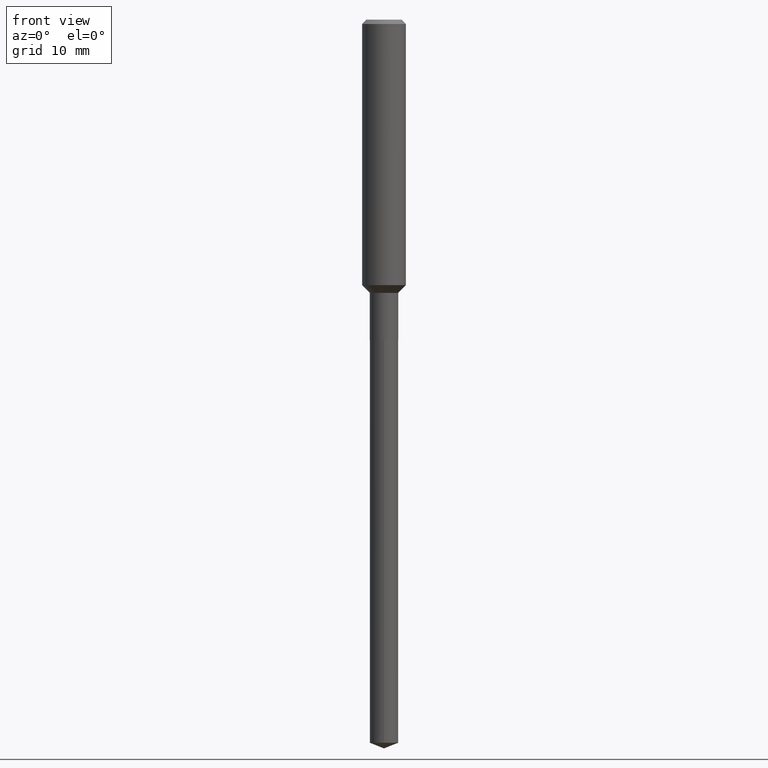
[diagram: clean part render]
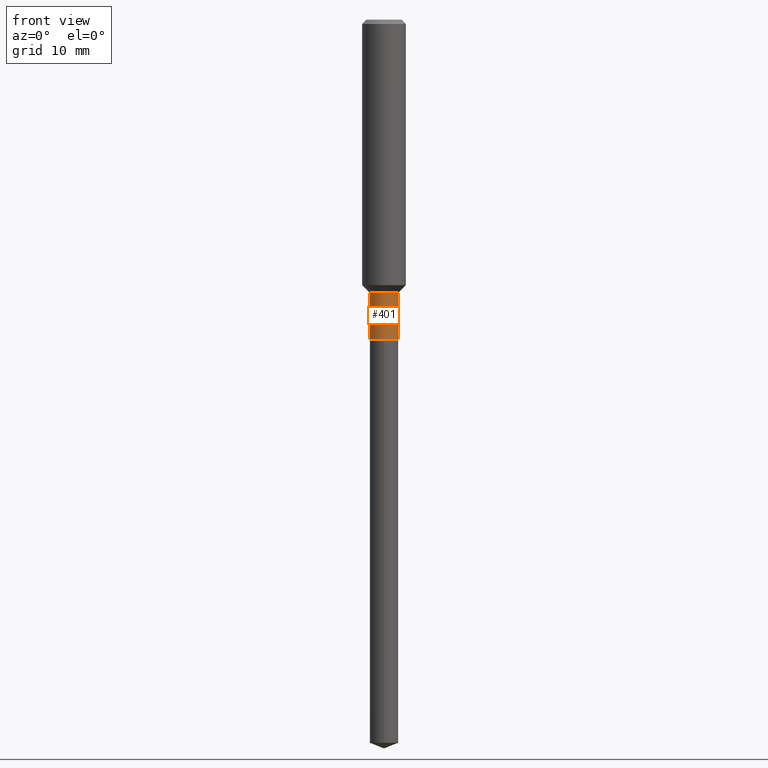
[diagram: same view with one face highlighted and labeled with its STEP entity id]
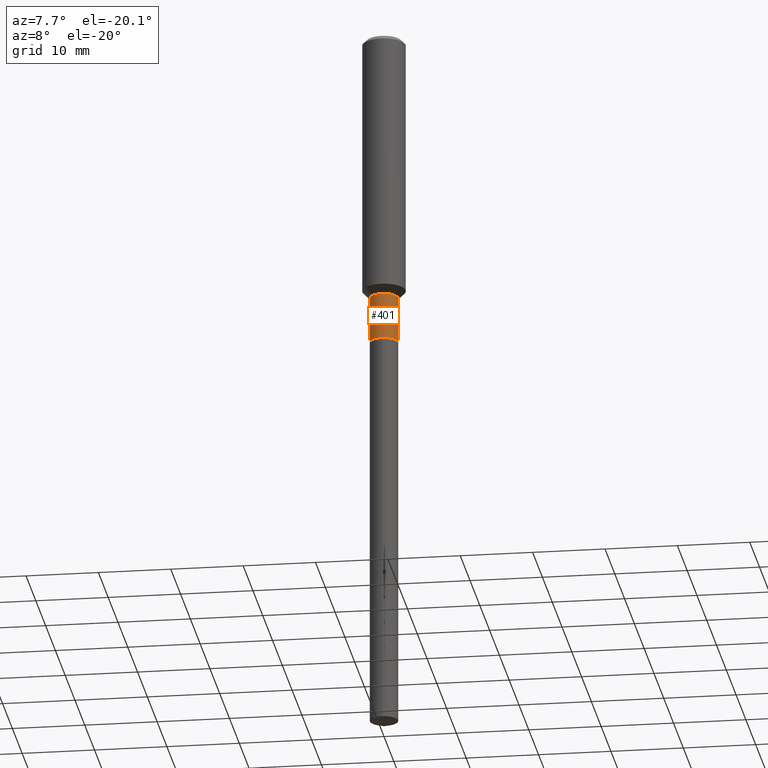
[diagram: same view with one face highlighted and labeled with its STEP entity id]
A machine part, front view. The second image highlights one B-rep face of the part: STEP entity #401.
A second angle (auxiliary view) of the same face is appended — the face is thin or edge-on in the first view.
In plain terms, the highlighted cylindrical surface (edge-blend (fillet) strip) has radius 1.9494 mm, axis along (-0, 0, 1).
Its self-contained STEP definition (entity closure, byte-faithful):
#3 = CIRCLE ( 'NONE', #347, 0.07675000000000001266 ) ;
#8 = DIRECTION ( 'NONE',  ( -2.445468806185136597E-29, 3.491481338843145583E-15, 1.000000000000000000 ) ) ;
#10 = DIRECTION ( 'NONE',  ( 1.000000000000000000, -6.982962677686271444E-15, 0.000000000000000000 ) ) ;
#33 = EDGE_CURVE ( 'NONE', #473, #44, #279, .T. ) ;
#43 = CARTESIAN_POINT ( 'NONE',  ( 4.220145518833691112E-29, -6.025249346441617231E-15, -1.725700000000000456 ) ) ;
#44 = VERTEX_POINT ( 'NONE', #81 ) ;
#58 = EDGE_CURVE ( 'NONE', #398, #44, #69, .T. ) ;
#62 = VERTEX_POINT ( 'NONE', #384 ) ;
#64 = EDGE_CURVE ( 'NONE', #62, #473, #3, .T. ) ;
#69 = CIRCLE ( 'NONE', #227, 0.07674999999999997102 ) ;
#79 = DIRECTION ( 'NONE',  ( 1.000000000000000000, -6.982962677686261977E-15, 0.000000000000000000 ) ) ;
#81 = CARTESIAN_POINT ( 'NONE',  ( 0.07674999999999997102, -5.678894397628374357E-15, -1.473000000000000087 ) ) ;
#87 = CARTESIAN_POINT ( 'NONE',  ( 3.602175551510706507E-29, -5.142952012115953829E-15, -1.473000000000000087 ) ) ;
#104 = ORIENTED_EDGE ( 'NONE', *, *, #33, .T. ) ;
#149 = VECTOR ( 'NONE', #422, 39.37007874015748143 ) ;
#227 = AXIS2_PLACEMENT_3D ( 'NONE', #87, #423, #79 ) ;
#239 = ORIENTED_EDGE ( 'NONE', *, *, #434, .F. ) ;
#262 = DIRECTION ( 'NONE',  ( -2.445468806185136597E-29, 3.491481338843145583E-15, 1.000000000000000000 ) ) ;
#267 = CYLINDRICAL_SURFACE ( 'NONE', #350, 0.07674999999999998490 ) ;
#270 = DIRECTION ( 'NONE',  ( 1.000000000000000000, -6.982962677686267499E-15, 4.876176775795935793E-29 ) ) ;
#272 = CARTESIAN_POINT ( 'NONE',  ( 0.07674999999999998490, -5.359423855124209227E-16, 3.742465675423380104E-30 ) ) ;
#279 = LINE ( 'NONE', #272, #149 ) ;
#299 = CARTESIAN_POINT ( 'NONE',  ( -0.07674999999999997102, -5.038759129582908744E-15, -1.473000000000000087 ) ) ;
#340 = CARTESIAN_POINT ( 'NONE',  ( 0.000000000000000000, 0.000000000000000000, 0.000000000000000000 ) ) ;
#341 = VECTOR ( 'NONE', #487, 39.37007874015748143 ) ;
#347 = AXIS2_PLACEMENT_3D ( 'NONE', #43, #8, #10 ) ;
#350 = AXIS2_PLACEMENT_3D ( 'NONE', #340, #262, #270 ) ;
#361 = ORIENTED_EDGE ( 'NONE', *, *, #58, .F. ) ;
#374 = CARTESIAN_POINT ( 'NONE',  ( -0.07674999999999998490, 5.453415496958767854E-16, -3.775282681770639631E-30 ) ) ;
#384 = CARTESIAN_POINT ( 'NONE',  ( -0.07675000000000001266, -5.038759129582908744E-15, -1.725700000000000456 ) ) ;
#385 = ORIENTED_EDGE ( 'NONE', *, *, #64, .T. ) ;
#398 = VERTEX_POINT ( 'NONE', #299 ) ;
#401 = ADVANCED_FACE ( 'NONE', ( #445 ), #267, .T. ) ;
#406 = EDGE_LOOP ( 'NONE', ( #239, #385, #104, #361 ) ) ;
#409 = LINE ( 'NONE', #374, #341 ) ;
#416 = CARTESIAN_POINT ( 'NONE',  ( 0.07675000000000001266, -6.561191731954038548E-15, -1.725700000000000456 ) ) ;
#422 = DIRECTION ( 'NONE',  ( -2.445468806185136877E-29, 3.491481338843145188E-15, 1.000000000000000000 ) ) ;
#423 = DIRECTION ( 'NONE',  ( -2.445468806185136597E-29, 3.491481338843145583E-15, 1.000000000000000000 ) ) ;
#434 = EDGE_CURVE ( 'NONE', #62, #398, #409, .T. ) ;
#445 = FACE_OUTER_BOUND ( 'NONE', #406, .T. ) ;
#473 = VERTEX_POINT ( 'NONE', #416 ) ;
#487 = DIRECTION ( 'NONE',  ( -2.445468806185136877E-29, 3.491481338843145188E-15, 1.000000000000000000 ) ) ;